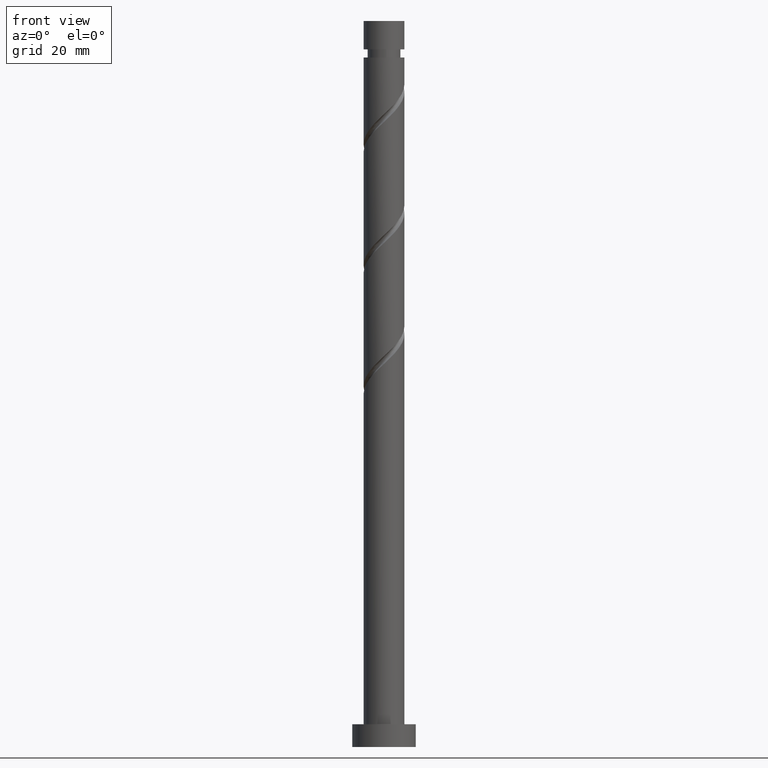
[diagram: clean part render]
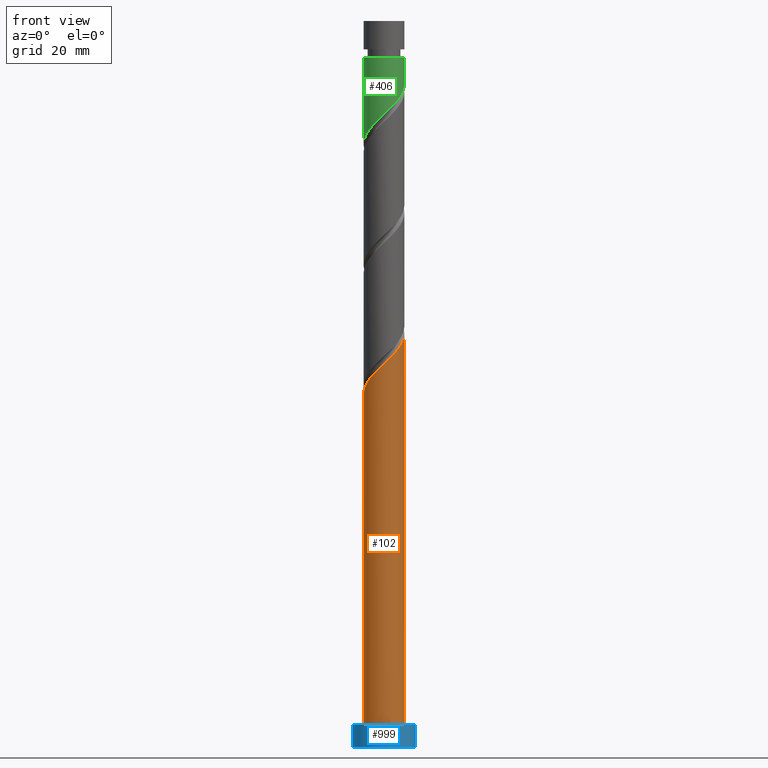
[diagram: same view with three faces highlighted in distinct colors, each labeled with its STEP entity id]
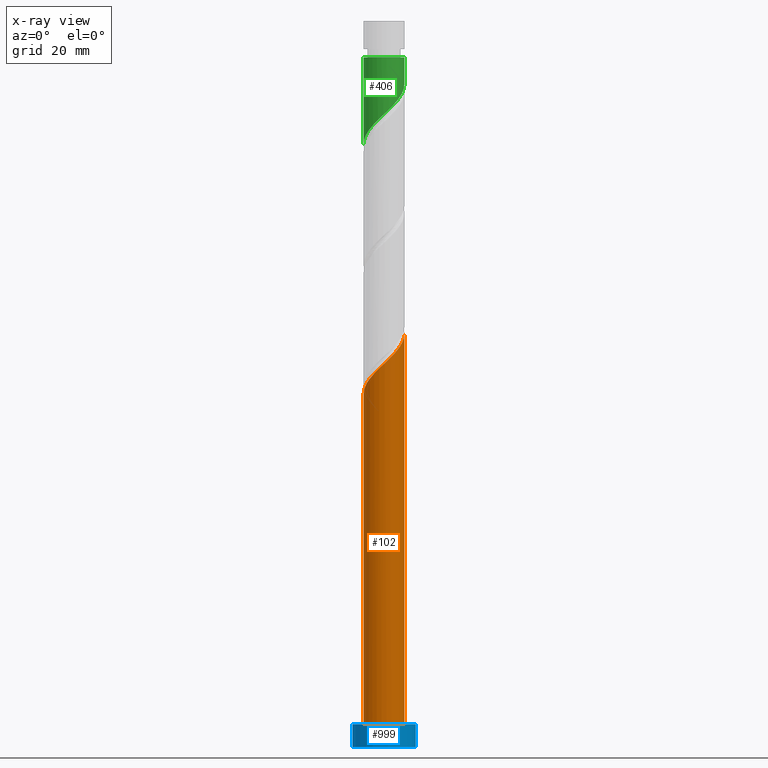
[diagram: x-ray of the same camera — body ghosted, the three highlighted faces saturated]
A machine part, front view with three faces highlighted in distinct colors.
The next image is the same camera in x-ray (body ghosted, the three faces saturated) — at least one of them is partly hidden behind the body in this view.
Their STEP definitions:

[orange] entity #102 — the highlighted cylindrical surface (edge-blend (fillet) strip) has radius 4.5 mm, axis along (-0, -0, -1).
#7 = LINE ( 'NONE', #536, #1656 ) ;
#15 = CARTESIAN_POINT ( 'NONE',  ( 2.673760399956920608, -3.676903225482061721, 87.10445711419728809 ) ) ;
#25 = CARTESIAN_POINT ( 'NONE',  ( -2.746435239905301362, -3.564701035571757881, 81.64991165965184905 ) ) ;
#56 = ORIENTED_EDGE ( 'NONE', *, *, #844, .F. ) ;
#77 = CARTESIAN_POINT ( 'NONE',  ( 4.500000000000000000, 5.510910596163088569E-16, 160.0000000000000000 ) ) ;
#102 = ADVANCED_FACE ( 'NONE', ( #891 ), #1152, .T. ) ;
#128 = CARTESIAN_POINT ( 'NONE',  ( 3.137559031908917273, -3.225790340565678704, 87.71051772025791138 ) ) ;
#144 = CARTESIAN_POINT ( 'NONE',  ( -4.500000000000005329, -0.1294898693572057169, 77.89225215476618303 ) ) ;
#146 = DIRECTION ( 'NONE',  ( 1.000000000000000000, 0.000000000000000000, 0.000000000000000000 ) ) ;
#150 = CARTESIAN_POINT ( 'NONE',  ( -4.237671230118718491, -1.513982346470448048, 79.22566923540942696 ) ) ;
#190 = VECTOR ( 'NONE', #1228, 1000.000000000000000 ) ;
#196 = ORIENTED_EDGE ( 'NONE', *, *, #1615, .F. ) ;
#235 = CARTESIAN_POINT ( 'NONE',  ( -4.500000000000000000, 0.000000000000000000, 5.000000000000000000 ) ) ;
#248 = EDGE_CURVE ( 'NONE', #1331, #1170, #1451, .T. ) ;
#263 = CARTESIAN_POINT ( 'NONE',  ( 0.000000000000000000, 0.000000000000000000, 160.0000000000000000 ) ) ;
#265 = CARTESIAN_POINT ( 'NONE',  ( -0.3832254664060574800, -4.483652332852973821, 84.07415408389427114 ) ) ;
#273 = CARTESIAN_POINT ( 'NONE',  ( -2.233908606408681941, -3.959578808933017946, 82.25597226571247234 ) ) ;
#277 = DIRECTION ( 'NONE',  ( -1.000000000000000000, 0.000000000000000000, 0.000000000000000000 ) ) ;
#286 = CARTESIAN_POINT ( 'NONE',  ( 0.000000000000000000, 0.000000000000000000, 5.000000000000000000 ) ) ;
#292 = CARTESIAN_POINT ( 'NONE',  ( 4.500000000000009770, -0.5153801732330514085, 90.61752753040998698 ) ) ;
#295 = CARTESIAN_POINT ( 'NONE',  ( 4.500000000000006217, 2.078998077785999559E-15, 91.10348748338131486 ) ) ;
#314 = VERTEX_POINT ( 'NONE', #781 ) ;
#378 = CARTESIAN_POINT ( 'NONE',  ( 1.529550969913791469, -4.281248163371747850, 85.89233590207609836 ) ) ;
#401 = DIRECTION ( 'NONE',  ( -0.000000000000000000, -0.000000000000000000, -1.000000000000000000 ) ) ;
#509 = CARTESIAN_POINT ( 'NONE',  ( 4.383476546723556133, -1.017415040347144917, 90.13476014450031926 ) ) ;
#526 = CARTESIAN_POINT ( 'NONE',  ( 2.101655684935354707, -3.979075694426907006, 86.49839650813670744 ) ) ;
#536 = CARTESIAN_POINT ( 'NONE',  ( -4.500000000000000000, 0.000000000000000000, 160.0000000000000000 ) ) ;
#629 = CARTESIAN_POINT ( 'NONE',  ( -1.027877349690239805, -4.428552829077683661, 83.46809347783366206 ) ) ;
#635 = CARTESIAN_POINT ( 'NONE',  ( 0.8954886933959580464, -4.410000000000006359, 85.28627529601550350 ) ) ;
#645 = CARTESIAN_POINT ( 'NONE',  ( -4.455349029032745101, -0.9046972064923989310, 78.61960862934886052 ) ) ;
#761 = DIRECTION ( 'NONE',  ( -0.000000000000000000, -0.000000000000000000, -1.000000000000000000 ) ) ;
#772 = EDGE_LOOP ( 'NONE', ( #196, #56, #1311, #1582 ) ) ;
#781 = CARTESIAN_POINT ( 'NONE',  ( -4.500000000000006217, -2.318307209041941552E-15, 77.77015415004797205 ) ) ;
#795 = CARTESIAN_POINT ( 'NONE',  ( -3.258961873401924780, -3.169823262210498704, 81.04385105359125419 ) ) ;
#844 = EDGE_CURVE ( 'NONE', #314, #1465, #1082, .T. ) ;
#855 = EDGE_CURVE ( 'NONE', #314, #1331, #7, .T. ) ;
#891 = FACE_OUTER_BOUND ( 'NONE', #772, .T. ) ;
#895 = CARTESIAN_POINT ( 'NONE',  ( 3.601357663860914826, -2.774677455649294799, 88.31657832631853466 ) ) ;
#928 = CARTESIAN_POINT ( 'NONE',  ( 3.919276005899265503, -2.211170637825665253, 88.92263893237912953 ) ) ;
#969 = AXIS2_PLACEMENT_3D ( 'NONE', #263, #401, #277 ) ;
#1027 = CARTESIAN_POINT ( 'NONE',  ( -4.492553887271119706, -0.2587654729000719023, 78.01354802328820881 ) ) ;
#1082 =( BOUNDED_CURVE ( )  B_SPLINE_CURVE ( 2, ( #1408, #144, #1027, #645, #150, #1663, #1286, #795, #25, #273, #1541, #629, #265, #1169, #635, #378, #526, #15, #128, #895, #928, #1435, #509, #292, #1567 ),
 .UNSPECIFIED., .F., .T. ) 
 B_SPLINE_CURVE_WITH_KNOTS ( ( 3, 2, 2, 2, 2, 2, 2, 2, 2, 2, 2, 2, 3 ),
 ( 0.05452521624175139803, 0.05681818181818176772, 0.06818181818181823228, 0.07954545454545458583, 0.09090909090909093937, 0.1022727272727272929, 0.1136363636363636465, 0.1250000000000000000, 0.1363636363636363535, 0.1477272727272727071, 0.1590909090909090606, 0.1704545454545454142, 0.1795252162417513564 ),
 .UNSPECIFIED. ) 
 CURVE ( )  GEOMETRIC_REPRESENTATION_ITEM ( )  RATIONAL_B_SPLINE_CURVE ( ( 0.9061101570135614569, 0.9072237824201435652, 0.9090909090909210510, 0.8998376744372232894, 0.9090909090909210510, 0.8998376744372232894, 0.9090909090909210510, 0.8998376744372232894, 0.9090909090909210510, 0.8998376744372232894, 0.9090909090909210510, 0.8998376744372232894, 0.9090909090909210510, 0.8998376744372232894, 0.9090909090909210510, 0.8998376744372232894, 0.9090909090909210510, 0.8998376744372232894, 0.9090909090909210510, 0.8998376744372232894, 0.9090909090909210510, 0.8998376744372232894, 0.9090909090909210510, 0.9017048011080006642, 0.9061101570135614569 ) ) 
 REPRESENTATION_ITEM ( '' )  );
#1100 = AXIS2_PLACEMENT_3D ( 'NONE', #286, #1429, #146 ) ;
#1152 = CYLINDRICAL_SURFACE ( 'NONE', #969, 4.500000000000000000 ) ;
#1169 = CARTESIAN_POINT ( 'NONE',  ( 0.2614264168781251785, -4.538751836628264869, 84.68021468995489442 ) ) ;
#1170 = VERTEX_POINT ( 'NONE', #1492 ) ;
#1220 = LINE ( 'NONE', #77, #190 ) ;
#1228 = DIRECTION ( 'NONE',  ( -0.000000000000000000, -0.000000000000000000, -1.000000000000000000 ) ) ;
#1286 = CARTESIAN_POINT ( 'NONE',  ( -3.639477652303308108, -2.646545374329497324, 80.43779044753063090 ) ) ;
#1311 = ORIENTED_EDGE ( 'NONE', *, *, #855, .T. ) ;
#1331 = VERTEX_POINT ( 'NONE', #235 ) ;
#1408 = CARTESIAN_POINT ( 'NONE',  ( -4.500000000000005329, -2.318307209041941552E-15, 77.77015415004797205 ) ) ;
#1429 = DIRECTION ( 'NONE',  ( 0.000000000000000000, 0.000000000000000000, 1.000000000000000000 ) ) ;
#1435 = CARTESIAN_POINT ( 'NONE',  ( 4.237194347937617955, -1.647663820002035040, 89.52869953843975281 ) ) ;
#1451 = CIRCLE ( 'NONE', #1100, 4.500000000000000000 ) ;
#1465 = VERTEX_POINT ( 'NONE', #295 ) ;
#1492 = CARTESIAN_POINT ( 'NONE',  ( 4.500000000000000000, 5.510910596163088569E-16, 5.000000000000000000 ) ) ;
#1541 = CARTESIAN_POINT ( 'NONE',  ( -1.630892978049461206, -4.194065819005349915, 82.86203287177306720 ) ) ;
#1567 = CARTESIAN_POINT ( 'NONE',  ( 4.500000000000005329, 2.078998077785999559E-15, 91.10348748338131486 ) ) ;
#1582 = ORIENTED_EDGE ( 'NONE', *, *, #248, .T. ) ;
#1615 = EDGE_CURVE ( 'NONE', #1465, #1170, #1220, .T. ) ;
#1656 = VECTOR ( 'NONE', #761, 1000.000000000000000 ) ;
#1663 = CARTESIAN_POINT ( 'NONE',  ( -4.019993431204690104, -2.123267486448498165, 79.83172984147003604 ) ) ;

[blue] entity #999 — the highlighted cylindrical surface (edge-blend (fillet) strip) has radius 7 mm, axis along (-0, -0, -1).
#54 = CYLINDRICAL_SURFACE ( 'NONE', #741, 7.000000000000000000 ) ;
#76 = EDGE_CURVE ( 'NONE', #287, #1456, #1206, .T. ) ;
#132 = VECTOR ( 'NONE', #224, 1000.000000000000000 ) ;
#224 = DIRECTION ( 'NONE',  ( -0.000000000000000000, -0.000000000000000000, -1.000000000000000000 ) ) ;
#267 = AXIS2_PLACEMENT_3D ( 'NONE', #989, #853, #487 ) ;
#287 = VERTEX_POINT ( 'NONE', #1446 ) ;
#373 = CARTESIAN_POINT ( 'NONE',  ( 7.000000000000000000, 8.572527594031473190E-16, 5.000000000000000000 ) ) ;
#375 = DIRECTION ( 'NONE',  ( 1.000000000000000000, 0.000000000000000000, 0.000000000000000000 ) ) ;
#392 = CARTESIAN_POINT ( 'NONE',  ( 7.000000000000000000, 8.572527594031473190E-16, 0.000000000000000000 ) ) ;
#413 = ORIENTED_EDGE ( 'NONE', *, *, #76, .T. ) ;
#429 = EDGE_LOOP ( 'NONE', ( #1045, #1048, #1591, #413 ) ) ;
#477 = CIRCLE ( 'NONE', #267, 7.000000000000000000 ) ;
#487 = DIRECTION ( 'NONE',  ( 1.000000000000000000, 0.000000000000000000, 0.000000000000000000 ) ) ;
#505 = LINE ( 'NONE', #373, #132 ) ;
#544 = CARTESIAN_POINT ( 'NONE',  ( 0.000000000000000000, 0.000000000000000000, 5.000000000000000000 ) ) ;
#609 = VERTEX_POINT ( 'NONE', #862 ) ;
#689 = AXIS2_PLACEMENT_3D ( 'NONE', #752, #1268, #375 ) ;
#702 = EDGE_CURVE ( 'NONE', #609, #287, #754, .T. ) ;
#707 = EDGE_CURVE ( 'NONE', #609, #1306, #477, .T. ) ;
#741 = AXIS2_PLACEMENT_3D ( 'NONE', #544, #950, #1587 ) ;
#752 = CARTESIAN_POINT ( 'NONE',  ( 0.000000000000000000, 0.000000000000000000, 0.000000000000000000 ) ) ;
#754 = LINE ( 'NONE', #1383, #1369 ) ;
#853 = DIRECTION ( 'NONE',  ( 0.000000000000000000, 0.000000000000000000, 1.000000000000000000 ) ) ;
#862 = CARTESIAN_POINT ( 'NONE',  ( -7.000000000000000000, 0.000000000000000000, 5.000000000000000000 ) ) ;
#950 = DIRECTION ( 'NONE',  ( -0.000000000000000000, -0.000000000000000000, -1.000000000000000000 ) ) ;
#989 = CARTESIAN_POINT ( 'NONE',  ( 0.000000000000000000, 0.000000000000000000, 5.000000000000000000 ) ) ;
#999 = ADVANCED_FACE ( 'NONE', ( #1073 ), #54, .T. ) ;
#1008 = CARTESIAN_POINT ( 'NONE',  ( 7.000000000000000000, 8.572527594031473190E-16, 5.000000000000000000 ) ) ;
#1045 = ORIENTED_EDGE ( 'NONE', *, *, #1191, .F. ) ;
#1048 = ORIENTED_EDGE ( 'NONE', *, *, #707, .F. ) ;
#1073 = FACE_OUTER_BOUND ( 'NONE', #429, .T. ) ;
#1191 = EDGE_CURVE ( 'NONE', #1306, #1456, #505, .T. ) ;
#1206 = CIRCLE ( 'NONE', #689, 7.000000000000000000 ) ;
#1268 = DIRECTION ( 'NONE',  ( 0.000000000000000000, 0.000000000000000000, 1.000000000000000000 ) ) ;
#1306 = VERTEX_POINT ( 'NONE', #1008 ) ;
#1369 = VECTOR ( 'NONE', #1495, 1000.000000000000000 ) ;
#1383 = CARTESIAN_POINT ( 'NONE',  ( -7.000000000000000000, 0.000000000000000000, 5.000000000000000000 ) ) ;
#1446 = CARTESIAN_POINT ( 'NONE',  ( -7.000000000000000000, 0.000000000000000000, 0.000000000000000000 ) ) ;
#1456 = VERTEX_POINT ( 'NONE', #392 ) ;
#1495 = DIRECTION ( 'NONE',  ( -0.000000000000000000, -0.000000000000000000, -1.000000000000000000 ) ) ;
#1587 = DIRECTION ( 'NONE',  ( -1.000000000000000000, 0.000000000000000000, 0.000000000000000000 ) ) ;
#1591 = ORIENTED_EDGE ( 'NONE', *, *, #702, .T. ) ;

[green] entity #406 — the highlighted cylindrical surface (edge-blend (fillet) strip) has radius 4.5 mm, axis along (-0, -0, -1).
#55 = EDGE_CURVE ( 'NONE', #798, #899, #521, .T. ) ;
#78 = CARTESIAN_POINT ( 'NONE',  ( 3.258961873401920339, -3.169823262210493819, 142.8620328717730672 ) ) ;
#202 = CARTESIAN_POINT ( 'NONE',  ( 4.455349029032740660, -0.9046972064923995971, 145.2862752960155035 ) ) ;
#211 = AXIS2_PLACEMENT_3D ( 'NONE', #1645, #369, #1625 ) ;
#217 = CARTESIAN_POINT ( 'NONE',  ( 1.027877349690238695, -4.428552829077677444, 140.4377904475306309 ) ) ;
#296 = VERTEX_POINT ( 'NONE', #922 ) ;
#318 = DIRECTION ( 'NONE',  ( -0.000000000000000000, -0.000000000000000000, -1.000000000000000000 ) ) ;
#331 = CARTESIAN_POINT ( 'NONE',  ( 4.500000000000001776, -0.1294898693571942816, 146.0136317705981810 ) ) ;
#350 = CARTESIAN_POINT ( 'NONE',  ( -0.8954886933959586015, -4.410000000000001030, 138.6196086293488179 ) ) ;
#363 = CARTESIAN_POINT ( 'NONE',  ( -4.499999999999993783, 0.000000000000000000, 151.9529419626821607 ) ) ;
#369 = DIRECTION ( 'NONE',  ( -0.000000000000000000, -0.000000000000000000, -1.000000000000000000 ) ) ;
#372 = CARTESIAN_POINT ( 'NONE',  ( -3.919276005899260618, -2.211170637825660812, 134.9832449929852203 ) ) ;
#377 = EDGE_CURVE ( 'NONE', #1212, #899, #1289, .T. ) ;
#406 = ADVANCED_FACE ( 'NONE', ( #968 ), #1464, .T. ) ;
#463 = CARTESIAN_POINT ( 'NONE',  ( 4.492553887271115265, -0.2587654729000734566, 145.8923359020761552 ) ) ;
#470 = CARTESIAN_POINT ( 'NONE',  ( 1.630892978049456765, -4.194065819005344586, 141.0438510535912542 ) ) ;
#482 = ORIENTED_EDGE ( 'NONE', *, *, #377, .T. ) ;
#490 = CARTESIAN_POINT ( 'NONE',  ( -2.101655684935353374, -3.979075694426899013, 137.4074874172276282 ) ) ;
#501 = CARTESIAN_POINT ( 'NONE',  ( 4.500000000000000000, 1.749948022309091449E-15, 146.1357297753164062 ) ) ;
#521 =( BOUNDED_CURVE ( )  B_SPLINE_CURVE ( 2, ( #1482, #331, #463, #202, #1113, #1229, #1503, #78, #580, #978, #470, #217, #1490, #723, #350, #1242, #490, #1647, #1430, #1528, #372, #623, #1544, #764, #947 ),
 .UNSPECIFIED., .F., .T. ) 
 B_SPLINE_CURVE_WITH_KNOTS ( ( 3, 2, 2, 2, 2, 2, 2, 2, 2, 2, 2, 2, 3 ),
 ( 0.3045252162417512176, 0.3068181818181818232, 0.3181818181818181768, 0.3295454545454545303, 0.3409090909090908839, 0.3522727272727272929, 0.3636363636363636465, 0.3750000000000000000, 0.3863636363636363535, 0.3977272727272727071, 0.4090909090909091161, 0.4204545454545454697, 0.4295252162417513286 ),
 .UNSPECIFIED. ) 
 CURVE ( )  GEOMETRIC_REPRESENTATION_ITEM ( )  RATIONAL_B_SPLINE_CURVE ( ( 0.9061101570135545735, 0.9072237824201367928, 0.9090909090909143897, 0.8998376744372167391, 0.9090909090909143897, 0.8998376744372167391, 0.9090909090909143897, 0.8998376744372167391, 0.9090909090909143897, 0.8998376744372167391, 0.9090909090909143897, 0.8998376744372167391, 0.9090909090909143897, 0.8998376744372167391, 0.9090909090909143897, 0.8998376744372167391, 0.9090909090909143897, 0.8998376744372167391, 0.9090909090909143897, 0.8998376744372167391, 0.9090909090909143897, 0.8998376744372167391, 0.9090909090909143897, 0.9017048011079942249, 0.9061101570135547956 ) ) 
 REPRESENTATION_ITEM ( '' )  );
#580 = CARTESIAN_POINT ( 'NONE',  ( 2.746435239905296477, -3.564701035571752996, 142.2559722657125008 ) ) ;
#604 = CIRCLE ( 'NONE', #211, 4.499999999999993783 ) ;
#623 = CARTESIAN_POINT ( 'NONE',  ( -4.237194347937610850, -1.647663820002032598, 134.3771843869246254 ) ) ;
#638 = CARTESIAN_POINT ( 'NONE',  ( -4.500000000000000000, 0.000000000000000000, 160.0000000000000000 ) ) ;
#639 = EDGE_CURVE ( 'NONE', #296, #1212, #604, .T. ) ;
#655 = VECTOR ( 'NONE', #1165, 1000.000000000000000 ) ;
#675 = LINE ( 'NONE', #1097, #857 ) ;
#678 = CARTESIAN_POINT ( 'NONE',  ( 0.000000000000000000, 0.000000000000000000, 160.0000000000000000 ) ) ;
#723 = CARTESIAN_POINT ( 'NONE',  ( -0.2614264168781268438, -4.538751836628259539, 139.2256692354094696 ) ) ;
#764 = CARTESIAN_POINT ( 'NONE',  ( -4.500000000000000000, -0.5153801732330544061, 133.2883563949543770 ) ) ;
#798 = VERTEX_POINT ( 'NONE', #501 ) ;
#809 = EDGE_LOOP ( 'NONE', ( #1207, #1384, #482, #1058 ) ) ;
#857 = VECTOR ( 'NONE', #318, 1000.000000000000000 ) ;
#899 = VERTEX_POINT ( 'NONE', #937 ) ;
#922 = CARTESIAN_POINT ( 'NONE',  ( 4.499999999999993783, 5.510910596163084625E-16, 151.9529419626821607 ) ) ;
#937 = CARTESIAN_POINT ( 'NONE',  ( -4.500000000000000000, -2.737098188739860746E-15, 132.8023964419830634 ) ) ;
#938 = AXIS2_PLACEMENT_3D ( 'NONE', #678, #1360, #1324 ) ;
#947 = CARTESIAN_POINT ( 'NONE',  ( -4.500000000000000000, -2.737098188739860746E-15, 132.8023964419830634 ) ) ;
#968 = FACE_OUTER_BOUND ( 'NONE', #809, .T. ) ;
#978 = CARTESIAN_POINT ( 'NONE',  ( 2.233908606408677056, -3.959578808933011729, 141.6499116596518490 ) ) ;
#1001 = EDGE_CURVE ( 'NONE', #296, #798, #675, .T. ) ;
#1058 = ORIENTED_EDGE ( 'NONE', *, *, #55, .F. ) ;
#1097 = CARTESIAN_POINT ( 'NONE',  ( 4.500000000000000000, 5.510910596163088569E-16, 160.0000000000000000 ) ) ;
#1113 = CARTESIAN_POINT ( 'NONE',  ( 4.237671230118713162, -1.513982346470447160, 144.6802146899549371 ) ) ;
#1165 = DIRECTION ( 'NONE',  ( -0.000000000000000000, -0.000000000000000000, -1.000000000000000000 ) ) ;
#1207 = ORIENTED_EDGE ( 'NONE', *, *, #1001, .F. ) ;
#1212 = VERTEX_POINT ( 'NONE', #363 ) ;
#1229 = CARTESIAN_POINT ( 'NONE',  ( 4.019993431204683887, -2.123267486448495944, 144.0741540838942853 ) ) ;
#1242 = CARTESIAN_POINT ( 'NONE',  ( -1.529550969913790137, -4.281248163371742521, 138.0135480232882514 ) ) ;
#1289 = LINE ( 'NONE', #638, #655 ) ;
#1324 = DIRECTION ( 'NONE',  ( -1.000000000000000000, 0.000000000000000000, 0.000000000000000000 ) ) ;
#1360 = DIRECTION ( 'NONE',  ( -0.000000000000000000, -0.000000000000000000, -1.000000000000000000 ) ) ;
#1384 = ORIENTED_EDGE ( 'NONE', *, *, #639, .T. ) ;
#1430 = CARTESIAN_POINT ( 'NONE',  ( -3.137559031908914164, -3.225790340565672487, 136.1953662051064669 ) ) ;
#1464 = CYLINDRICAL_SURFACE ( 'NONE', #938, 4.500000000000000000 ) ;
#1482 = CARTESIAN_POINT ( 'NONE',  ( 4.500000000000000000, 1.749948022309091449E-15, 146.1357297753164062 ) ) ;
#1490 = CARTESIAN_POINT ( 'NONE',  ( 0.3832254664060548155, -4.483652332852966715, 139.8317298414700360 ) ) ;
#1503 = CARTESIAN_POINT ( 'NONE',  ( 3.639477652303302779, -2.646545374329494660, 143.4680934778337189 ) ) ;
#1528 = CARTESIAN_POINT ( 'NONE',  ( -3.601357663860910385, -2.774677455649289026, 135.5893055990458151 ) ) ;
#1544 = CARTESIAN_POINT ( 'NONE',  ( -4.383476546723550804, -1.017415040347143140, 133.7711237808639737 ) ) ;
#1625 = DIRECTION ( 'NONE',  ( -1.000000000000000000, 0.000000000000000000, 0.000000000000000000 ) ) ;
#1645 = CARTESIAN_POINT ( 'NONE',  ( 0.000000000000000000, 0.000000000000000000, 151.9529419626821607 ) ) ;
#1647 = CARTESIAN_POINT ( 'NONE',  ( -2.673760399956917055, -3.676903225482058168, 136.8014268111670617 ) ) ;